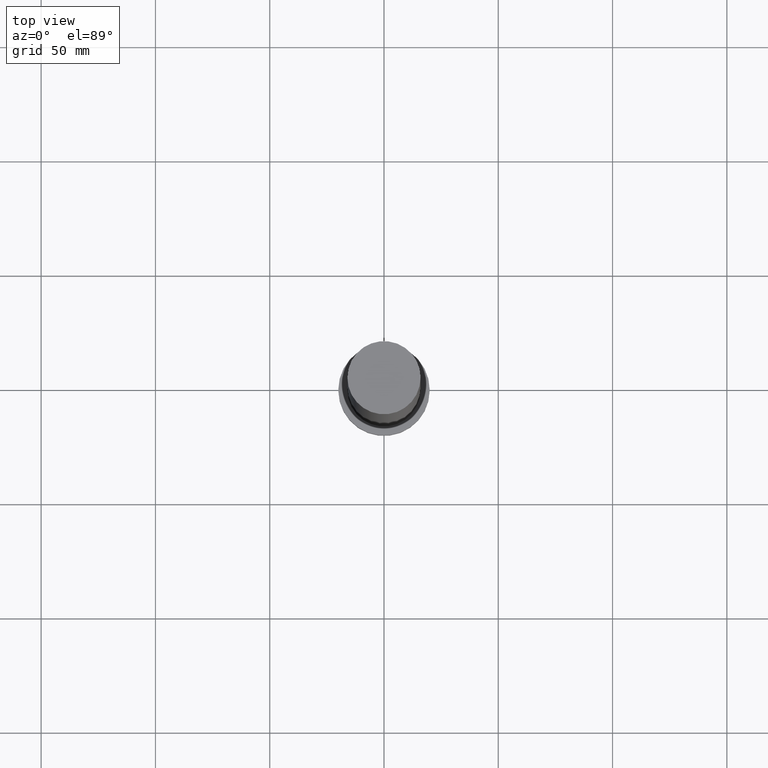
[diagram: clean part render]
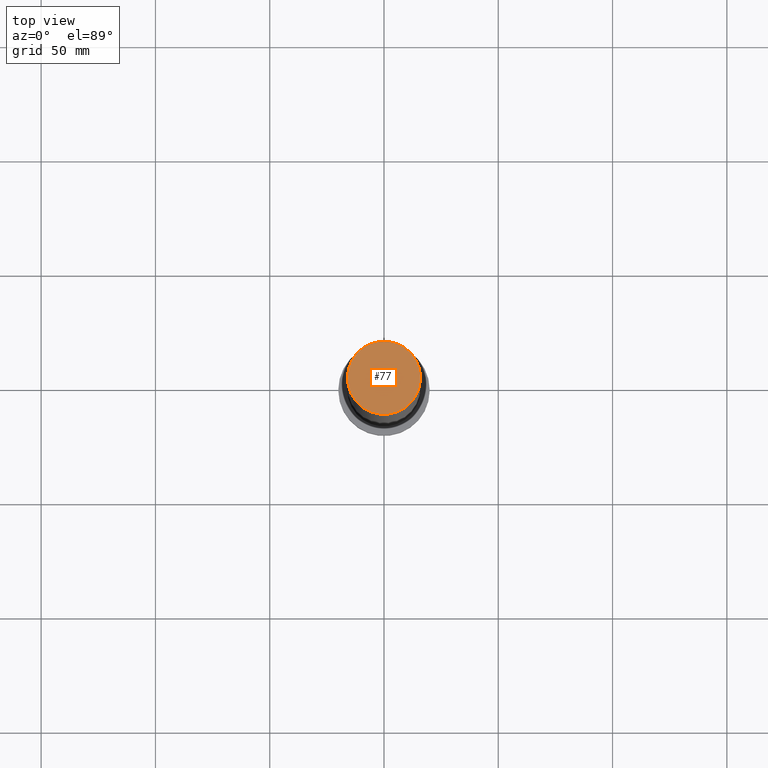
[diagram: same view with one face highlighted and labeled with its STEP entity id]
A machine part, top view. The second image highlights one B-rep face of the part: STEP entity #77.
In plain terms, the highlighted planar face has unit normal (0, 0, 1).
Its self-contained STEP definition (entity closure, byte-faithful):
#13 = CARTESIAN_POINT ( 'NONE',  ( 0.000000000000000000, 0.000000000000000000, 315.0000000000000000 ) ) ;
#33 = EDGE_LOOP ( 'NONE', ( #147, #225 ) ) ;
#36 = EDGE_CURVE ( 'NONE', #189, #134, #240, .T. ) ;
#45 = DIRECTION ( 'NONE',  ( 1.000000000000000000, 0.000000000000000000, -0.000000000000000000 ) ) ;
#48 = CIRCLE ( 'NONE', #221, 16.00000000000000000 ) ;
#53 = CARTESIAN_POINT ( 'NONE',  ( 16.00000000000000000, 1.959434878635765131E-15, 315.0000000000000000 ) ) ;
#62 = FACE_OUTER_BOUND ( 'NONE', #33, .T. ) ;
#77 = ADVANCED_FACE ( 'NONE', ( #62 ), #239, .T. ) ;
#83 = DIRECTION ( 'NONE',  ( 0.000000000000000000, 0.000000000000000000, 1.000000000000000000 ) ) ;
#124 = EDGE_CURVE ( 'NONE', #134, #189, #48, .T. ) ;
#134 = VERTEX_POINT ( 'NONE', #53 ) ;
#135 = AXIS2_PLACEMENT_3D ( 'NONE', #13, #190, #45 ) ;
#140 = DIRECTION ( 'NONE',  ( 1.000000000000000000, 0.000000000000000000, 0.000000000000000000 ) ) ;
#147 = ORIENTED_EDGE ( 'NONE', *, *, #36, .T. ) ;
#161 = AXIS2_PLACEMENT_3D ( 'NONE', #163, #182, #140 ) ;
#163 = CARTESIAN_POINT ( 'NONE',  ( 0.000000000000000000, 0.000000000000000000, 315.0000000000000000 ) ) ;
#166 = DIRECTION ( 'NONE',  ( 1.000000000000000000, 0.000000000000000000, 0.000000000000000000 ) ) ;
#182 = DIRECTION ( 'NONE',  ( 0.000000000000000000, 0.000000000000000000, 1.000000000000000000 ) ) ;
#187 = CARTESIAN_POINT ( 'NONE',  ( 0.000000000000000000, 0.000000000000000000, 315.0000000000000000 ) ) ;
#189 = VERTEX_POINT ( 'NONE', #244 ) ;
#190 = DIRECTION ( 'NONE',  ( 0.000000000000000000, 0.000000000000000000, 1.000000000000000000 ) ) ;
#221 = AXIS2_PLACEMENT_3D ( 'NONE', #187, #83, #166 ) ;
#225 = ORIENTED_EDGE ( 'NONE', *, *, #124, .T. ) ;
#239 = PLANE ( 'NONE',  #135 ) ;
#240 = CIRCLE ( 'NONE', #161, 16.00000000000000000 ) ;
#244 = CARTESIAN_POINT ( 'NONE',  ( -16.00000000000000000, 0.000000000000000000, 315.0000000000000000 ) ) ;